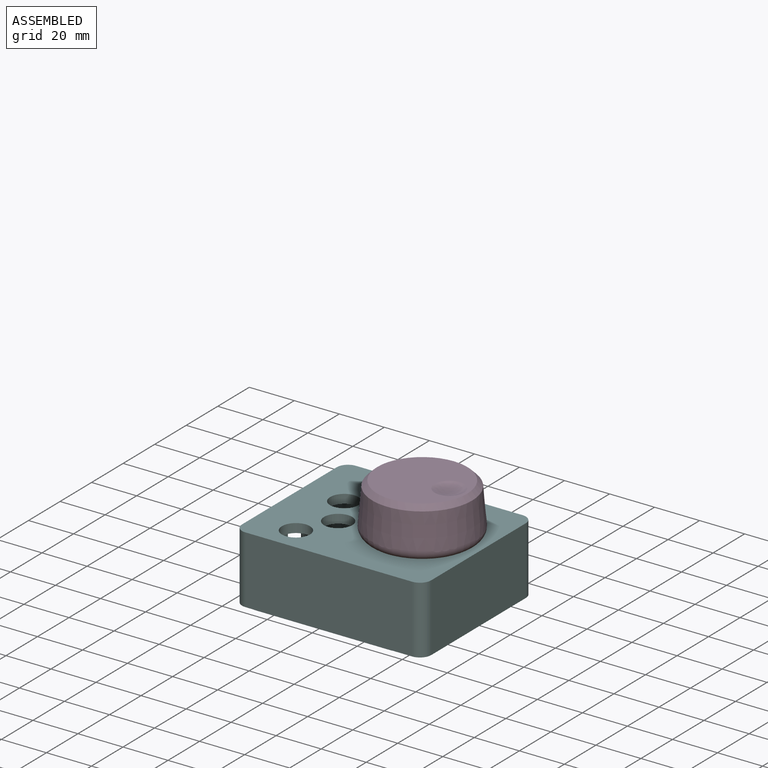
[diagram: assembled view]
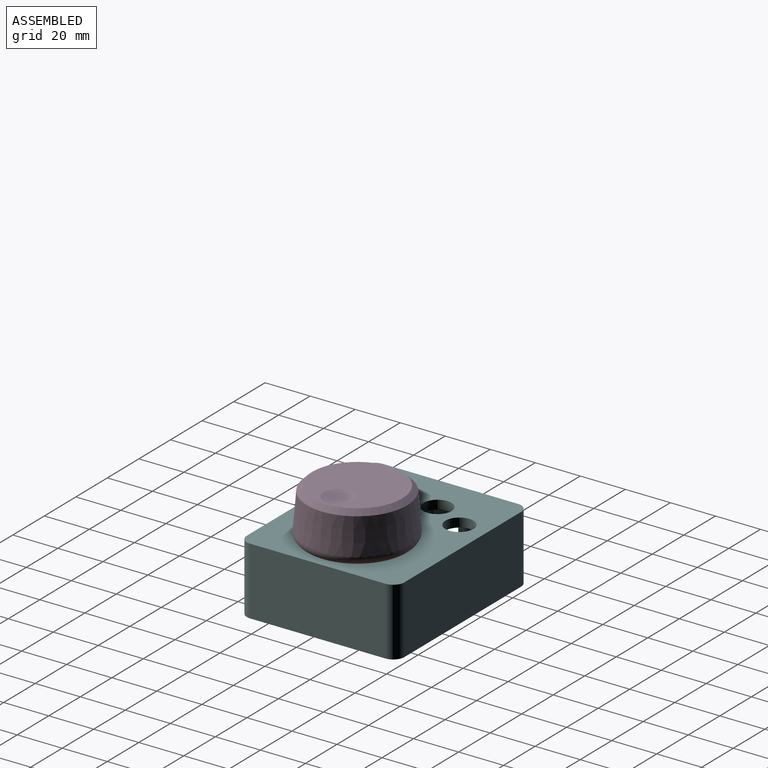
[diagram: assembled view, second angle]
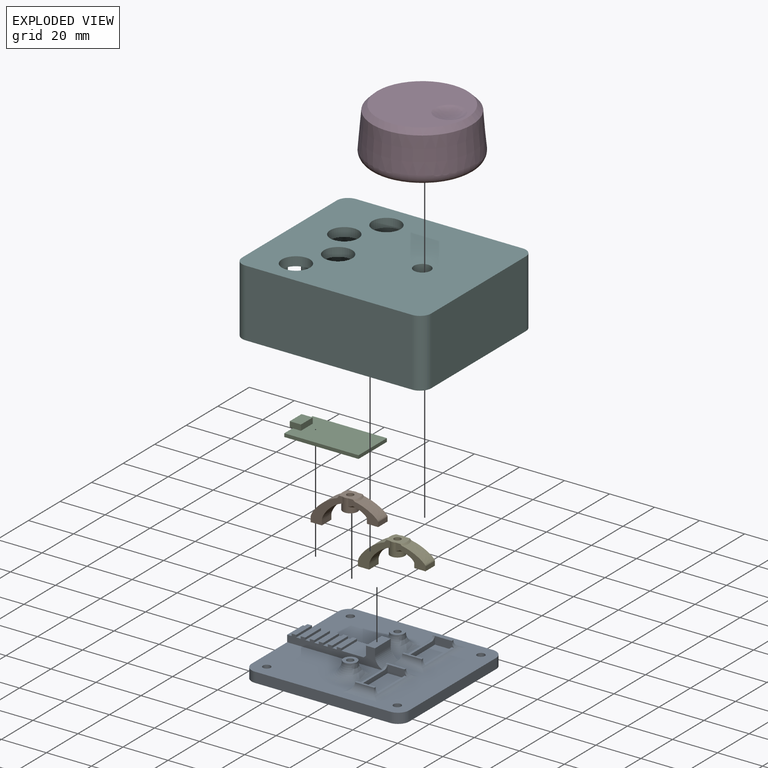
[diagram: exploded view]
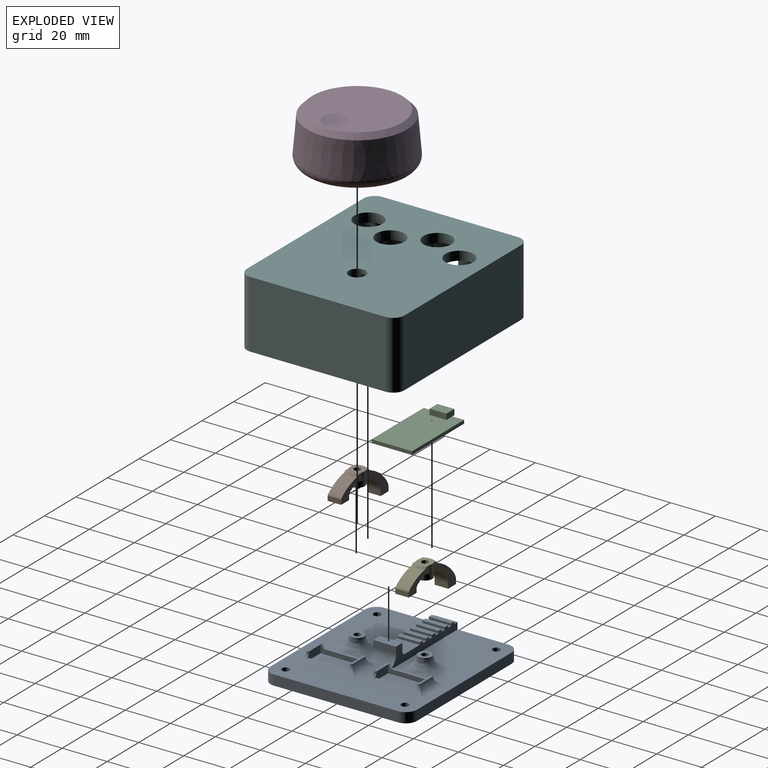
[diagram: exploded view, second angle]
ASSEMBLY  parts=6 mates=5
PART A: 112 faces, bbox 14.8x65x70 mm
  f0: plane 10x2mm, normal (-1,0,0), area 20mm2, adj f1,f109,f110,f111
  f1: plane 42.22x8mm, normal (0,-1,0), area 154.5mm2, adj f0,f2,f3,f4,f5,f6,f7,f8
  f2: plane 10x4mm, normal (-1,0,0), area 40mm2, adj f1,f3,f108,f110
  f3: plane 10x4mm, normal (0,0,1), area 40mm2, adj f1,f2,f4,f110
  f4: plane 10x1mm, normal (-0.71,0,0.71), area 14.1mm2, adj f1,f3,f5,f110
  f5: plane 10x10mm, normal (-1,0,0), area 100mm2, adj f1,f4,f6,f110
  f6: plane 10x1mm, normal (0,0,-1), area 10mm2, adj f1,f5,f7,f110
  f7: plane 10x2mm, normal (-1,0,0), area 20mm2, adj f1,f6,f8,f110
  f8: plane 10x1mm, normal (0,0,1), area 10mm2, adj f1,f7,f9,f110
  f9: plane 10x2mm, normal (-1,0,0), area 20mm2, adj f1,f8,f10,f110
  f10: plane 10x1mm, normal (0,0,-1), area 10mm2, adj f1,f9,f11,f110
  f11: plane 10x2mm, normal (-1,0,0), area 20mm2, adj f1,f10,f12,f110
  f12: plane 10x1mm, normal (0,0,1), area 10mm2, adj f1,f11,f13,f110
  f13: plane 10x2mm, normal (-1,0,0), area 20mm2, adj f1,f12,f14,f110
  f14: plane 10x1mm, normal (0,0,-1), area 10mm2, adj f1,f13,f15,f110
  f15: plane 10x2mm, normal (-1,0,0), area 20mm2, adj f1,f14,f16,f110
  f16: plane 10x1mm, normal (0,0,1), area 10mm2, adj f1,f15,f17,f110
  f17: plane 10x2mm, normal (-1,0,0), area 20mm2, adj f1,f16,f18,f110
  f18: plane 10x1mm, normal (0,0,-1), area 10mm2, adj f1,f17,f19,f110
  f19: plane 10x2mm, normal (-1,0,0), area 20mm2, adj f1,f18,f20,f110
  f20: plane 10x1mm, normal (0,0,1), area 10mm2, adj f1,f19,f21,f110
  f21: plane 10x2mm, normal (-1,0,0), area 20mm2, adj f1,f20,f22,f110
  f22: plane 10x1mm, normal (0,0,-1), area 10mm2, adj f1,f21,f23,f110
  f23: plane 10x2mm, normal (-1,0,0), area 20mm2, adj f1,f22,f24,f110
  f24: plane 10x1mm, normal (0,0,1), area 10mm2, adj f1,f23,f25,f110
  f25: plane 10x2mm, normal (-1,0,0), area 20mm2, adj f1,f24,f109,f110
  f26: plane 10x2mm, normal (-1,0,0), area 20mm2, adj f1,f27,f110,f111
  f27: plane 55x7.5mm, normal (0,0,1), area 277.5mm2, adj f1,f26,f28,f34,f47,f48,f110
  f28: cylinder r=5mm len=5mm, axis (-1,0,0), area 35.3mm2, adj f27,f29,f34,f48
  f29: plane 60x4.5mm, normal (0,1,0), area 270mm2, adj f28,f30,f34,f48
  f30: cylinder r=5mm len=5mm, axis (1,0,0), area 35.3mm2, adj f29,f31,f34,f48
  f31: plane 55x4.5mm, normal (0,0,-1), area 247.5mm2, adj f30,f32,f34,f48
  f32: cylinder r=5mm len=5mm, axis (-1,0,0), area 35.3mm2, adj f31,f33,f34,f48
  f33: plane 60x4.5mm, normal (0,-1,0), area 270mm2, adj f32,f34,f47,f48
  f34: plane 70x65mm, normal (1,0,0), area 4415.4mm2, adj f27,f28,f29,f30,f31,f32,f33,f35
  f35: cylinder r=3mm len=6mm, axis (1,0,0), area 47.1mm2, adj f34,f36
  f36: plane 6x6mm, normal (1,0,0), area 19.2mm2, adj f35,f37
  f37: cylinder r=1.7mm len=3.4mm, axis (1,0,0), area 21.4mm2, adj f36,f48
  f38: cylinder r=3mm len=6mm, axis (1,0,0), area 47.1mm2, adj f34,f39
  f39: plane 6x6mm, normal (1,0,0), area 19.2mm2, adj f38,f40
  f40: cylinder r=1.7mm len=3.4mm, axis (1,0,0), area 21.4mm2, adj f39,f48
  f41: cylinder r=3mm len=6mm, axis (1,0,0), area 47.1mm2, adj f34,f42
  f42: plane 6x6mm, normal (1,0,0), area 19.2mm2, adj f41,f43
  f43: cylinder r=1.7mm len=3.4mm, axis (1,0,0), area 21.4mm2, adj f42,f48
  f44: cylinder r=3mm len=6mm, axis (1,0,0), area 47.1mm2, adj f34,f45
  f45: plane 6x6mm, normal (1,0,0), area 19.2mm2, adj f44,f46
  f46: cylinder r=1.7mm len=3.4mm, axis (1,0,0), area 21.4mm2, adj f45,f48
  f47: cylinder r=5mm len=5mm, axis (1,0,0), area 35.3mm2, adj f27,f33,f34,f48
  f48: plane 70x65mm, normal (-1,0,0), area 2788.9mm2, adj f1,f27,f28,f29,f30,f31,f32,f33
  f49: cylinder r=3.5mm len=3.5mm, axis (0,-1,0), area 8.1mm2, adj f48,f50,f65,f77,f107,f110
  f50: plane 8.5x1mm, normal (-1,0,0), area 8.5mm2, adj f49,f51,f53,f64,f77
  f51: plane 1.04x0.5mm, normal (0,0,-1), area 0.5mm2, adj f50,f52,f53,f77
  f52: cylinder r=2.5mm len=2.05mm, axis (0,-1,0), area 3.6mm2, adj f51,f53,f76,f77
  f53: plane 8.5x3.5mm, normal (0,1,0), area 26.9mm2, adj f50,f51,f52,f54,f61,f62,f63
  f54: plane 18.25x1mm, normal (-1,0,0), area 18.3mm2, adj f53,f55,f61,f76
  f55: plane 8.5x3.5mm, normal (0,-1,0), area 26.9mm2, adj f54,f56,f57,f58,f61,f62,f63
  f56: cylinder r=2.5mm len=2.05mm, axis (0,-1,0), area 3.6mm2, adj f55,f57,f75,f76
  f57: plane 1.04x0.5mm, normal (0,0,-1), area 0.5mm2, adj f55,f56,f58,f75
  f58: plane 8.5x1mm, normal (-1,0,0), area 8.5mm2, adj f55,f57,f59,f74,f75
  f59: cylinder r=2.5mm len=2.29mm, axis (0,0,-1), area 2.9mm2, adj f58,f60,f63,f73
  f60: plane 13.67x1mm, normal (-1,0,0), area 13.7mm2, adj f59,f63,f64,f72
  f61: plane 18.25x1mm, normal (0,0,1), area 18.3mm2, adj f53,f54,f55,f62
  f62: plane 18.25x7.5mm, normal (-1,0,0), area 136.9mm2, adj f53,f55,f61,f63
  f63: plane 18.25x3.5mm, normal (0,0,-1), area 38.4mm2, adj f53,f55,f59,f60,f62,f64
  f64: cylinder r=2.5mm len=2.29mm, axis (0,0,-1), area 2.9mm2, adj f50,f60,f63,f65
  f65: bspline ~3.55x3.54mm, area 10.2mm2, adj f48,f49,f64,f72
  f66: torus R=9mm, axis (1,0,0), area 225.9mm2, adj f48,f67,f69
  f67: bspline ~14.19x6.46mm, area 54.1mm2, adj f66,f68,f72
  f68: cylinder r=3mm len=4.42mm, axis (1,0,0), area 0mm2, adj f67,f69
  f69: plane 6x6mm, normal (-1,0,0), area 21.2mm2, adj f66,f68,f70
  f70: cylinder r=1.5mm len=6mm, axis (1,0,0), area 56.5mm2, adj f69,f71
  f71: plane 3x3mm, normal (-1,0,0), area 7.1mm2, adj f70
  f72: cylinder r=3.5mm len=13.67mm, axis (0,1,0), area 54mm2, adj f48,f60,f65,f67,f73
  f73: bspline ~3.65x3.63mm, area 10.2mm2, adj f48,f59,f72,f74
  f74: cylinder r=3.5mm len=4.5mm, axis (0,-1,0), area 12.5mm2, adj f48,f58,f73,f75
  f75: cylinder r=3.5mm len=15.45mm, axis (0,0,1), area 60.9mm2, adj f48,f56,f57,f58,f74,f76
  f76: cylinder r=3.5mm len=27.25mm, axis (0,-1,0), area 67.3mm2, adj f48,f52,f54,f56,f75,f77
  f77: cylinder r=3.5mm len=13.98mm, axis (0,0,-1), area 58.4mm2, adj f48,f49,f50,f51,f52,f76,f107
  f78: cylinder r=3.5mm len=13.98mm, axis (0,0,1), area 58.4mm2, adj f48,f79,f92,f93,f94,f106,f107
  f79: cylinder r=2.5mm len=2.05mm, axis (0,1,0), area 3.6mm2, adj f78,f80,f92,f94
  f80: plane 8.5x3.5mm, normal (0,-1,0), area 26.9mm2, adj f79,f81,f89,f90,f91,f92,f93
  f81: plane 18.25x7.5mm, normal (-1,0,0), area 136.9mm2, adj f80,f82,f89,f91
  f82: plane 8.5x3.5mm, normal (0,1,0), area 26.9mm2, adj f81,f83,f84,f85,f89,f90,f91
  f83: plane 1.04x0.5mm, normal (0,0,-1), area 0.5mm2, adj f82,f84,f85,f95
  f84: cylinder r=2.5mm len=2.05mm, axis (0,1,0), area 3.6mm2, adj f82,f83,f94,f95
  f85: plane 8.5x1mm, normal (-1,0,0), area 8.5mm2, adj f82,f83,f86,f95,f96
  f86: cylinder r=2.5mm len=2.29mm, axis (0,0,1), area 2.9mm2, adj f85,f87,f91,f97
  f87: plane 13.67x1mm, normal (-1,0,0), area 13.7mm2, adj f86,f88,f91,f104
  f88: cylinder r=2.5mm len=2.29mm, axis (0,0,-1), area 2.9mm2, adj f87,f91,f93,f105
  f89: plane 18.25x1mm, normal (0,0,1), area 18.3mm2, adj f80,f81,f82,f90
  f90: plane 18.25x1mm, normal (-1,0,0), area 18.3mm2, adj f80,f82,f89,f94
  f91: plane 18.25x3.5mm, normal (0,0,-1), area 38.4mm2, adj f80,f81,f82,f86,f87,f88
  f92: plane 1.04x0.5mm, normal (0,0,-1), area 0.5mm2, adj f78,f79,f80,f93
  f93: plane 8.5x1mm, normal (-1,0,0), area 8.5mm2, adj f78,f80,f88,f92,f106
  f94: cylinder r=3.5mm len=27.25mm, axis (0,1,0), area 67.3mm2, adj f48,f78,f79,f84,f90,f95
  f95: cylinder r=3.5mm len=15.45mm, axis (0,0,-1), area 60.9mm2, adj f48,f83,f84,f85,f94,f96
  f96: cylinder r=3.5mm len=4.5mm, axis (0,-1,0), area 12.5mm2, adj f48,f85,f95,f97
  f97: bspline ~3.65x3.63mm, area 10.2mm2, adj f48,f86,f96,f104
  f98: torus R=9mm, axis (1,0,0), area 225.9mm2, adj f48,f99,f101
  f99: bspline ~14.19x6.46mm, area 54.1mm2, adj f98,f100,f104
  f100: cylinder r=3mm len=4.42mm, axis (1,0,0), area 0mm2, adj f99,f101
  f101: plane 6x6mm, normal (-1,0,0), area 21.2mm2, adj f98,f100,f102
  f102: cylinder r=1.5mm len=6mm, axis (1,0,0), area 56.5mm2, adj f101,f103
  f103: plane 3x3mm, normal (-1,0,0), area 7.1mm2, adj f102
  f104: cylinder r=3.5mm len=13.67mm, axis (0,-1,0), area 54mm2, adj f48,f87,f97,f99,f105
  f105: bspline ~3.55x3.54mm, area 10.2mm2, adj f48,f88,f104,f106
  f106: cylinder r=3.5mm len=3.5mm, axis (0,-1,0), area 8.1mm2, adj f1,f48,f78,f93,f105,f107
  f107: cylinder r=5mm len=10mm, axis (0,1,0), area 68.1mm2, adj f1,f48,f49,f77,f78,f106,f108,f110
  f108: plane 10x3mm, normal (0,0,-1), area 30mm2, adj f1,f2,f107,f110
  f109: plane 10x1mm, normal (0,0,-1), area 10mm2, adj f0,f1,f25,f110
  f110: plane 42.22x8mm, normal (0,1,0), area 154.5mm2, adj f0,f2,f3,f4,f5,f6,f7,f8
  f111: plane 10x1mm, normal (0,0,1), area 10mm2, adj f0,f1,f26,f110
PART B: 21 faces, bbox 31.3x11.4x16.9 mm
  f0: extruded ~9.24x9.24mm, area 82.2mm2, adj f2,f3,f5,f7
  f1: extruded ~11.82x10.84mm, area 99.7mm2, adj f2,f3,f6,f18
  f2: plane 14.87x14.14mm, normal (0,-1,0), area 63.9mm2, adj f0,f1,f4,f5,f6,f7,f8,f18
  f3: plane 14.87x14.14mm, normal (0,1,0), area 63.9mm2, adj f0,f1,f4,f5,f6,f7,f8,f18
  f4: plane 6x5mm, normal (0,0,-1), area 30mm2, adj f2,f3,f5,f6
  f5: plane 6x2mm, normal (1,0,0), area 12mm2, adj f0,f2,f3,f4
  f6: plane 6x2mm, normal (-1,0,0), area 12mm2, adj f1,f2,f3,f4
  f7: cylinder r=3.25mm len=6.5mm, axis (0,0,-1), area 75.2mm2, adj f0,f2,f3,f8,f9,f13,f14,f20
  f8: plane 8.98x7.75mm, normal (0,0,1), area 37mm2, adj f2,f3,f7,f13,f14,f17,f18,f19
  f9: plane 6.5x6.5mm, normal (0,0,-1), area 26.1mm2, adj f7,f17
  f10: plane 6x2mm, normal (-1,0,0), area 12mm2, adj f11,f13,f14,f16
  f11: plane 6x5mm, normal (0,0,-1), area 30mm2, adj f10,f12,f13,f14
  f12: plane 6x2mm, normal (1,0,0), area 12mm2, adj f11,f13,f14,f15
  f13: plane 13.55x8.29mm, normal (0,-1,0), area 42.7mm2, adj f7,f8,f10,f11,f12,f15,f16,f19
  f14: plane 13.55x8.29mm, normal (0,1,0), area 42.7mm2, adj f7,f8,f10,f11,f12,f15,f16,f19
  f15: extruded ~10.54x6mm, area 72.8mm2, adj f12,f13,f14,f19
  f16: extruded ~6.34x6mm, area 44.9mm2, adj f10,f13,f14,f20
  f17: cylinder r=1.5mm len=6mm, axis (0,0,-1), area 56.5mm2, adj f8,f9
  f18: bspline ~10.11x3.62mm, area 7.9mm2, adj f1,f2,f3,f8
  f19: bspline ~10.12x3.95mm, area 4.6mm2, adj f8,f13,f14,f15
  f20: bspline ~7.85x3.26mm, area 11.4mm2, adj f7,f13,f14,f16
PART C: 12 faces, bbox 34.3x18x4 mm
  f0: plane 33x18mm, normal (0,0,1), area 565.9mm2, adj f1,f2,f3,f4,f6,f8,f9
  f1: plane 18x1.5mm, normal (1,0,0), area 27mm2, adj f0,f2,f4,f5,f11
  f2: plane 33x1.5mm, normal (0,1,0), area 49.5mm2, adj f0,f1,f3,f5
  f3: plane 18x1.5mm, normal (-1,0,0), area 27mm2, adj f0,f2,f4,f5
  f4: plane 33x1.5mm, normal (0,-1,0), area 49.5mm2, adj f0,f1,f3,f5
  f5: plane 33x18mm, normal (0,0,-1), area 594mm2, adj f1,f2,f3,f4
  f6: plane 5x2.5mm, normal (0,-1,0), area 12.5mm2, adj f0,f7,f9,f10,f11
  f7: plane 7.5x2.5mm, normal (1,0,0), area 18.8mm2, adj f6,f8,f10,f11
  f8: plane 5x2.5mm, normal (0,1,0), area 12.5mm2, adj f0,f7,f9,f10,f11
  f9: plane 7.5x2.5mm, normal (-1,0,0), area 18.8mm2, adj f0,f6,f8,f10
  f10: plane 7.5x5mm, normal (0,0,1), area 37.5mm2, adj f6,f7,f8,f9
  f11: plane 7.5x1.25mm, normal (0,0,-1), area 9.4mm2, adj f1,f6,f7,f8
PART D: 25 faces, bbox 51x51x23.4 mm
  f0: cone r=22mm half-angle=5deg, axis (0,0,1), area 2229.8mm2, adj f23,f24
  f1: plane 39.12x39.01mm, normal (0,0,1), area 545.4mm2, adj f7,f8,f10,f12,f14,f16,f18,f20
  f2: plane 40x40mm, normal (0,0,-1), area 1122.3mm2, adj f22,f23
  f3: cylinder r=3.2mm len=10.5mm, axis (0,0,1), area 142.9mm2, adj f4,f5,f6,f7
  f4: plane 10x5.6mm, normal (0,1,0), area 56mm2, adj f3,f5,f6
  f5: plane 6.4x4.75mm, normal (0,0,1), area 25.6mm2, adj f3,f4
  f6: plane 5.6x1.65mm, normal (0,0,1), area 6.6mm2, adj f3,f4
  f7: cone r=3.2mm half-angle=45deg, axis (0,0,1), area 74.6mm2, adj f1,f3
  f8: cylinder r=5.12mm len=20mm, axis (0,0,1), area 644mm2, adj f1,f9,f24
  f9: plane 10.25x10.25mm, normal (0,0,1), area 82.5mm2, adj f8
  f10: cylinder r=5.12mm len=20mm, axis (0,0,1), area 644mm2, adj f1,f11,f24
  f11: plane 10.25x10.25mm, normal (0,0,1), area 82.5mm2, adj f10
  f12: cylinder r=5.12mm len=20mm, axis (0,0,1), area 644mm2, adj f1,f13,f24
  f13: plane 10.25x10.25mm, normal (0,0,1), area 82.5mm2, adj f12
  f14: cylinder r=5.12mm len=20mm, axis (0,0,1), area 644mm2, adj f1,f15,f24
  f15: plane 10.25x10.25mm, normal (0,0,1), area 82.5mm2, adj f14
  f16: cylinder r=5.12mm len=20mm, axis (0,0,1), area 644mm2, adj f1,f17,f24
  f17: plane 10.25x10.25mm, normal (0,0,1), area 82.5mm2, adj f16
  f18: cylinder r=5.12mm len=20mm, axis (0,0,1), area 644mm2, adj f1,f19,f24
  f19: plane 10.25x10.25mm, normal (0,0,1), area 82.5mm2, adj f18
  f20: cylinder r=5.12mm len=20mm, axis (0,0,1), area 644mm2, adj f1,f21,f24
  f21: plane 10.25x10.25mm, normal (0,0,1), area 82.5mm2, adj f20
  f22: sphere r=15mm, area 141.4mm2, adj f2
  f23: cone r=22mm half-angle=45deg, axis (0,0,1), area 410.9mm2, adj f0,f2
  f24: torus R=19.56mm, axis (0,0,1), area 918.3mm2, adj f0,f1,f8,f10,f12,f14,f16,f18
PART E: same geometry as B
PART F: 98 faces, bbox 84x70x35.3 mm
  f0: plane 56x5.25mm, normal (1,0,0), area 195mm2, adj f30,f31,f58,f70,f71,f76,f89
  f1: plane 60x30mm, normal (-1,0,0), area 1608mm2, adj f9,f15,f16,f57,f58,f59,f60,f76
  f2: plane 21x15.8mm, normal (1,0,0), area 312.2mm2, adj f30,f35,f40,f77,f89
  f3: plane 76.5x59mm, normal (0,0,1), area 3590.6mm2, adj f8,f21,f22,f23,f24,f25,f26,f27
  f4: plane 43.59x21mm, normal (-1,0,0), area 876.5mm2, adj f36,f37,f48,f82,f83,f89
  f5: plane 57.59x21mm, normal (0,1,0), area 1170.5mm2, adj f38,f39,f52,f85,f86,f89
  f6: plane 21x15.8mm, normal (1,0,0), area 312.2mm2, adj f31,f34,f56,f88,f89
  f7: plane 57.59x21mm, normal (0,-1,0), area 1170.5mm2, adj f32,f33,f44,f79,f80,f89
  f8: plane 12x8.75mm, normal (1,0,0), area 105mm2, adj f3,f30,f31,f57
  f9: plane 84x70mm, normal (0,0,-1), area 5323.5mm2, adj f1,f10,f11,f12,f13,f14,f15,f16
  f10: plane 74x30mm, normal (0,1,0), area 2220mm2, adj f9,f14,f15,f76
  f11: plane 60x30mm, normal (1,0,0), area 1800mm2, adj f9,f13,f14,f76
  f12: plane 74x30mm, normal (0,-1,0), area 2220mm2, adj f9,f13,f16,f76
  f13: cylinder r=5mm len=30mm, axis (0,0,-1), area 235.6mm2, adj f9,f11,f12,f76
  f14: cylinder r=5mm len=30mm, axis (0,0,1), area 235.6mm2, adj f9,f10,f11,f76
  f15: cylinder r=5mm len=30mm, axis (0,0,-1), area 235.6mm2, adj f1,f9,f10,f76
  f16: cylinder r=5mm len=30mm, axis (0,0,1), area 235.6mm2, adj f1,f9,f12,f76
  f17: cone r=3.5mm half-angle=5deg, axis (0,0,1), area 101.7mm2, adj f32,f35,f42,f78
  f18: cone r=3.5mm half-angle=5deg, axis (0,0,1), area 101.7mm2, adj f33,f37,f46,f81
  f19: cone r=3.5mm half-angle=5deg, axis (0,0,1), area 101.7mm2, adj f36,f38,f50,f84
  f20: cone r=3.5mm half-angle=5deg, axis (0,0,1), area 101.7mm2, adj f34,f39,f54,f87
  f21: cylinder r=6.25mm len=12.5mm, axis (0,0,-1), area 157.1mm2, adj f3,f9
  f22: cylinder r=6.25mm len=12.5mm, axis (0,0,-1), area 157.1mm2, adj f3,f9
  f23: cylinder r=6.25mm len=12.5mm, axis (0,0,-1), area 157.1mm2, adj f3,f9
  f24: cylinder r=3.75mm len=7.5mm, axis (0,0,-1), area 90.2mm2, adj f3,f9,f26,f28,f29
  f25: cylinder r=6.25mm len=12.5mm, axis (0,0,-1), area 157.1mm2, adj f3,f9
  f26: plane 3.39x2mm, normal (0,-1,0), area 6.8mm2, adj f3,f24,f27,f29
  f27: plane 2x2mm, normal (1,0,0), area 4mm2, adj f3,f26,f28,f29
  f28: plane 3.39x2mm, normal (0,1,0), area 6.8mm2, adj f3,f24,f27,f29
  f29: plane 3.39x2mm, normal (0,0,1), area 6.6mm2, adj f24,f26,f27,f28
  f30: plane 23x3.5mm, normal (0,-1,0), area 35.4mm2, adj f0,f2,f3,f8,f40,f59,f89
  f31: plane 23x3.5mm, normal (0,1,0), area 35.4mm2, adj f0,f3,f6,f8,f56,f60,f89
  f32: bspline ~26.74x7.16mm, area 92.2mm2, adj f7,f17,f43,f79
  f33: bspline ~26.74x7.16mm, area 92.2mm2, adj f7,f18,f45,f80
  f34: bspline ~34.51x7.87mm, area 92.3mm2, adj f6,f20,f55,f88
  f35: bspline ~34.51x7.87mm, area 92.3mm2, adj f2,f17,f41,f77
  f36: bspline ~26.74x7.16mm, area 92.2mm2, adj f4,f19,f49,f83
  f37: bspline ~26.74x7.16mm, area 92.2mm2, adj f4,f18,f47,f82
  f38: bspline ~26.74x7.16mm, area 92.2mm2, adj f5,f19,f51,f85
  f39: bspline ~26.74x7.16mm, area 92.2mm2, adj f5,f20,f53,f86
  f40: cylinder r=2mm len=15.8mm, axis (0,1,0), area 49.6mm2, adj f2,f3,f30,f41
  f41: bspline ~4.87x3.88mm, area 14.9mm2, adj f3,f35,f40,f42
  f42: torus R=4.11mm, axis (0,0,1), area 22mm2, adj f3,f17,f41,f43
  f43: bspline ~4.42x3.88mm, area 14.9mm2, adj f3,f32,f42,f44
  f44: cylinder r=2mm len=57.59mm, axis (1,0,0), area 180.9mm2, adj f3,f7,f43,f45
  f45: bspline ~4.87x3.88mm, area 14.9mm2, adj f3,f33,f44,f46
  f46: torus R=4.11mm, axis (0,0,1), area 22mm2, adj f3,f18,f45,f47
  f47: bspline ~4.42x3.88mm, area 14.9mm2, adj f3,f37,f46,f48
  f48: cylinder r=2mm len=43.59mm, axis (0,-1,0), area 136.9mm2, adj f3,f4,f47,f49
  f49: bspline ~4.42x3.88mm, area 14.9mm2, adj f3,f36,f48,f50
  f50: torus R=4.11mm, axis (0,0,1), area 22mm2, adj f3,f19,f49,f51
  f51: bspline ~4.87x3.88mm, area 14.9mm2, adj f3,f38,f50,f52
  f52: cylinder r=2mm len=57.59mm, axis (-1,0,0), area 180.9mm2, adj f3,f5,f51,f53
  f53: bspline ~4.87x3.88mm, area 14.9mm2, adj f3,f39,f52,f54
  f54: torus R=4.11mm, axis (0,0,1), area 22mm2, adj f3,f20,f53,f55
  f55: bspline ~4.87x3.88mm, area 14.9mm2, adj f3,f34,f54,f56
  f56: cylinder r=2mm len=15.8mm, axis (0,1,0), area 49.6mm2, adj f3,f6,f31,f55
  f57: plane 16x2mm, normal (0,0,1), area 25.7mm2, adj f1,f8,f59,f60
  f58: plane 16x2mm, normal (0,0,-1), area 25.7mm2, adj f0,f1,f59,f60
  f59: cylinder r=2mm len=12mm, axis (0,0,-1), area 37.7mm2, adj f1,f30,f57,f58
  f60: cylinder r=2mm len=12mm, axis (0,0,1), area 37.7mm2, adj f1,f31,f57,f58
  f61: cylinder r=1.8mm len=3.6mm, axis (0,0,1), area 31.7mm2, adj f65,f66
  f62: plane 2.6x2.6mm, normal (0,0,1), area 5.3mm2, adj f66
  f63: cylinder r=1.8mm len=3.6mm, axis (0,0,1), area 31.7mm2, adj f67,f68
  f64: plane 2.6x2.6mm, normal (0,0,1), area 5.3mm2, adj f68
  f65: torus R=2.3mm, axis (0,0,1), area 9.8mm2, adj f3,f61
  f66: torus R=1.3mm, axis (0,0,1), area 8mm2, adj f61,f62
  f67: torus R=2.3mm, axis (0,0,1), area 9.8mm2, adj f3,f63
  f68: torus R=1.3mm, axis (0,0,1), area 8mm2, adj f63,f64
  f69: cylinder r=5mm len=5mm, axis (0,0,-1), area 23.6mm2, adj f73,f74,f76,f89
  f70: cylinder r=5mm len=5mm, axis (0,0,-1), area 23.6mm2, adj f0,f74,f76,f89
  f71: cylinder r=5mm len=5mm, axis (0,0,-1), area 23.6mm2, adj f0,f75,f76,f89
  f72: cylinder r=5mm len=5mm, axis (0,0,-1), area 23.6mm2, adj f73,f75,f76,f89
  f73: plane 56x3mm, normal (-1,0,0), area 168mm2, adj f69,f72,f76,f89
  f74: plane 70x3mm, normal (0,1,0), area 210mm2, adj f69,f70,f76,f89
  f75: plane 70x3mm, normal (0,-1,0), area 210mm2, adj f71,f72,f76,f89
  f76: plane 84x70mm, normal (0,0,1), area 600mm2, adj f0,f1,f10,f11,f12,f13,f14,f15
  f77: extruded ~5x3.92mm, area 28.3mm2, adj f2,f35,f78,f89
  f78: cylinder r=3.5mm len=5mm, axis (0,0,-1), area 38.5mm2, adj f17,f77,f79,f89
  f79: extruded ~5x3.92mm, area 28.3mm2, adj f7,f32,f78,f89
  f80: extruded ~5x3.92mm, area 28.3mm2, adj f7,f33,f81,f89
  f81: cylinder r=3.5mm len=5mm, axis (0,0,-1), area 38.5mm2, adj f18,f80,f82,f89
  f82: extruded ~5x3.92mm, area 28.3mm2, adj f4,f37,f81,f89
  f83: extruded ~5x3.92mm, area 28.3mm2, adj f4,f36,f84,f89
  f84: cylinder r=3.5mm len=5mm, axis (0,0,-1), area 38.5mm2, adj f19,f83,f85,f89
  f85: extruded ~5x3.92mm, area 28.3mm2, adj f5,f38,f84,f89
  f86: extruded ~5x3.92mm, area 28.3mm2, adj f5,f39,f87,f89
  f87: cylinder r=3.5mm len=5mm, axis (0,0,-1), area 38.5mm2, adj f20,f86,f88,f89
  f88: extruded ~5x3.92mm, area 28.3mm2, adj f6,f34,f87,f89
  f89: plane 80x66mm, normal (0,0,1), area 645.3mm2, adj f0,f2,f4,f5,f6,f7,f30,f31
  f90: plane 3x3mm, normal (0,0,1), area 7.1mm2, adj f91
  f91: cylinder r=1.5mm len=23mm, axis (0,0,1), area 216.8mm2, adj f89,f90
  f92: plane 3x3mm, normal (0,0,1), area 7.1mm2, adj f93
  f93: cylinder r=1.5mm len=23mm, axis (0,0,1), area 216.8mm2, adj f89,f92
  f94: plane 3x3mm, normal (0,0,1), area 7.1mm2, adj f95
  f95: cylinder r=1.5mm len=23mm, axis (0,0,1), area 216.8mm2, adj f89,f94
  f96: plane 3x3mm, normal (0,0,1), area 7.1mm2, adj f97
  f97: cylinder r=1.5mm len=23mm, axis (0,0,1), area 216.8mm2, adj f89,f96
PLACE A rot(axis=(0.71,0,-0.71),180deg) t=(19.98,22.03,-43.6)mm
PLACE B t=(21.98,10.03,-43.6)mm
PLACE C rot(axis=(0,0,-1),180deg) t=(2.98,22.03,-39.6)mm
PLACE D rot(axis=(1,0,0),180deg) t=(41.48,22.03,5.4)mm
PLACE E t=(21.98,40.03,-43.6)mm
PLACE F rot(axis=(1,0,0),180deg) t=(24.48,22.03,-20.6)mm fixed
MATE fastened A.f98 <-> E.f7  axis (0,0,1) through (19.98,37.03,-37.6)mm
MATE fastened A.f38 <-> F.f17  axis (0,0,1) through (-9.02,-4.47,-43.6)mm
MATE revolute D.f3 <-> F.f24  axis (0,0,-1) through (41.48,22.03,-16.6)mm
MATE fastened B.f7 <-> A.f70  axis (0,0,-1) through (19.98,7.03,-35.6)mm
MATE fastened A.f11 <-> C.f5  axis (0,0,1) through (2.98,22.03,-39.6)mm
